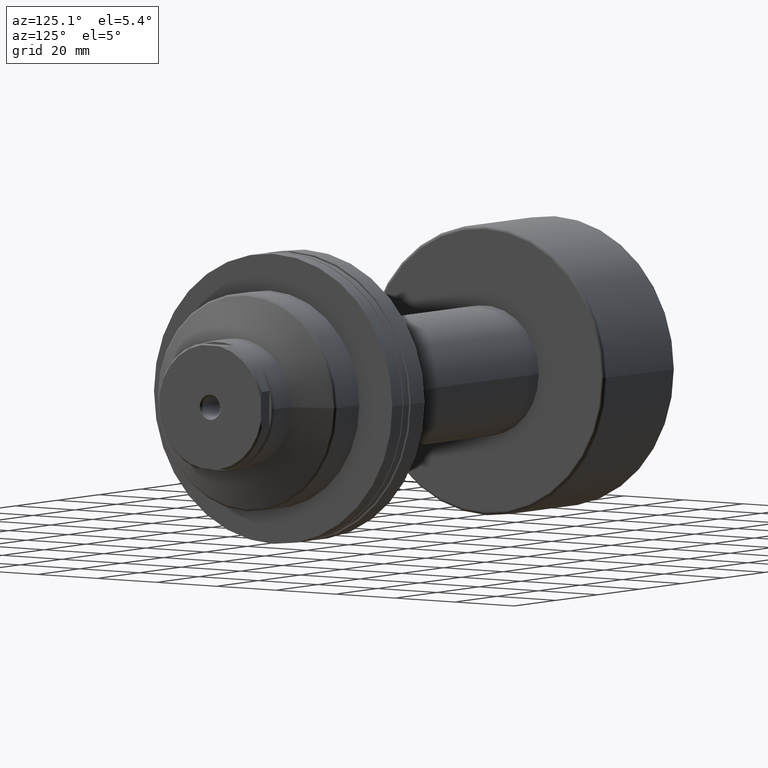
[diagram: clean part render]
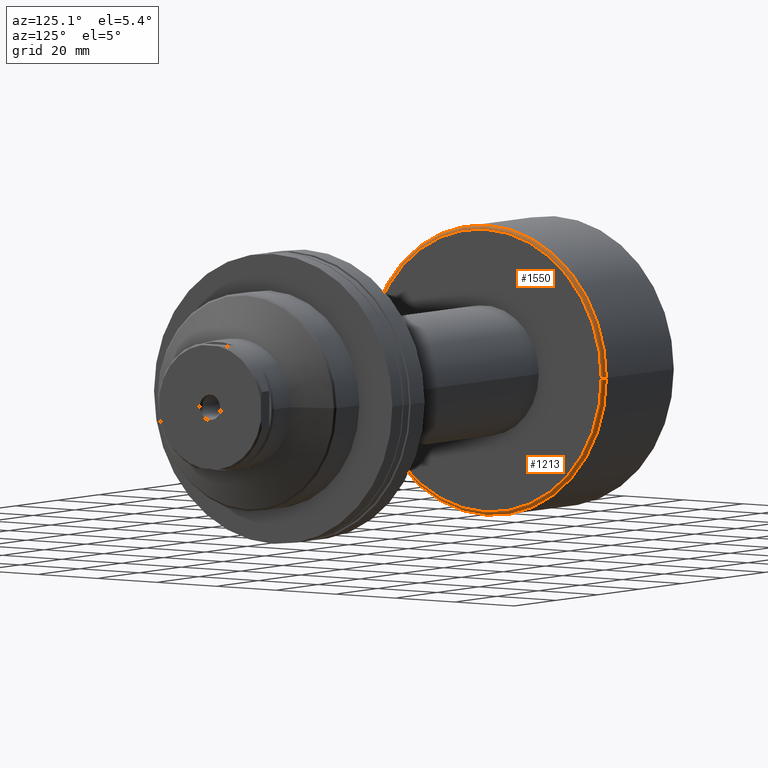
[diagram: same view with one multi-face feature highlighted, each face labeled with its STEP entity id]
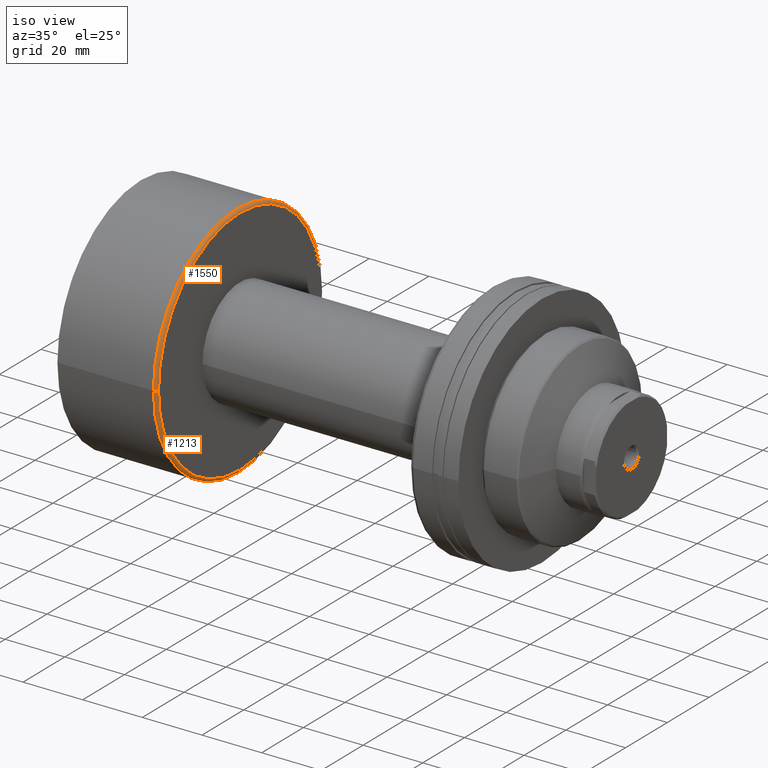
[diagram: same view with one multi-face feature highlighted, each face labeled with its STEP entity id]
A machine part, auxiliary view. The highlighted faces form ONE feature: a constant-radius fillet chain: 2 tangent blend faces with common blend radius 1 mm. The faces share edges in the B-rep.
A second angle (iso view) of the same feature is appended — it is thin or edge-on in the first view.
Their STEP definitions:
[1] entity #1213 (Torus):
#15 = EDGE_CURVE ( 'NONE', #43, #1897, #931, .T. ) ;
#43 = VERTEX_POINT ( 'NONE', #1557 ) ;
#99 = DIRECTION ( 'NONE',  ( -1.000000000000000000, -1.069542322069065801E-17, -0.000000000000000000 ) ) ;
#116 = CARTESIAN_POINT ( 'NONE',  ( 33.70000000000001705, 3.604357625372753238E-16, 0.000000000000000000 ) ) ;
#131 = CARTESIAN_POINT ( 'NONE',  ( 33.70000000000001705, 0.000000000000000000, 0.000000000000000000 ) ) ;
#214 = EDGE_CURVE ( 'NONE', #2219, #43, #1668, .T. ) ;
#294 = ORIENTED_EDGE ( 'NONE', *, *, #1683, .F. ) ;
#303 = CARTESIAN_POINT ( 'NONE',  ( 34.70000000000001705, 38.99999999999999289, 4.837354856632044663E-15 ) ) ;
#354 = CARTESIAN_POINT ( 'NONE',  ( 33.70000000000001705, -39.99999999999999289, 0.000000000000000000 ) ) ;
#443 = AXIS2_PLACEMENT_3D ( 'NONE', #1469, #2177, #2187 ) ;
#479 = ORIENTED_EDGE ( 'NONE', *, *, #1765, .F. ) ;
#577 = AXIS2_PLACEMENT_3D ( 'NONE', #131, #708, #2241 ) ;
#603 = AXIS2_PLACEMENT_3D ( 'NONE', #666, #1351, #2209 ) ;
#666 = CARTESIAN_POINT ( 'NONE',  ( 33.70000000000001705, -38.99999999999999289, 0.000000000000000000 ) ) ;
#708 = DIRECTION ( 'NONE',  ( -1.000000000000000000, -1.069542322069065801E-17, -0.000000000000000000 ) ) ;
#931 = CIRCLE ( 'NONE', #603, 1.000000000000000888 ) ;
#1037 = DIRECTION ( 'NONE',  ( 1.309811581274509052E-33, -1.224646799147353207E-16, 1.000000000000000000 ) ) ;
#1051 = CARTESIAN_POINT ( 'NONE',  ( 33.70000000000001705, 39.99999999999999289, 4.898587196589412237E-15 ) ) ;
#1199 = CARTESIAN_POINT ( 'NONE',  ( 33.70000000000001705, 38.99999999999999289, 4.776122516674677089E-15 ) ) ;
#1203 = FACE_OUTER_BOUND ( 'NONE', #1865, .T. ) ;
#1213 = ADVANCED_FACE ( 'NONE', ( #1203 ), #1821, .T. ) ;
#1233 = ORIENTED_EDGE ( 'NONE', *, *, #15, .T. ) ;
#1341 = DIRECTION ( 'NONE',  ( 0.000000000000000000, -1.000000000000000000, 0.000000000000000000 ) ) ;
#1351 = DIRECTION ( 'NONE',  ( 0.000000000000000000, 0.000000000000000000, -1.000000000000000000 ) ) ;
#1421 = ORIENTED_EDGE ( 'NONE', *, *, #214, .T. ) ;
#1469 = CARTESIAN_POINT ( 'NONE',  ( 34.70000000000001705, 3.711311857579660173E-16, 0.000000000000000000 ) ) ;
#1557 = CARTESIAN_POINT ( 'NONE',  ( 34.70000000000001705, -38.99999999999999289, 0.000000000000000000 ) ) ;
#1668 = CIRCLE ( 'NONE', #443, 38.99999999999999289 ) ;
#1678 = AXIS2_PLACEMENT_3D ( 'NONE', #1199, #1037, #1700 ) ;
#1683 = EDGE_CURVE ( 'NONE', #2219, #1905, #2091, .T. ) ;
#1700 = DIRECTION ( 'NONE',  ( 0.000000000000000000, -1.000000000000000000, -1.224646799147357151E-16 ) ) ;
#1765 = EDGE_CURVE ( 'NONE', #1905, #1897, #2233, .T. ) ;
#1821 = TOROIDAL_SURFACE ( 'NONE', #577, 38.99999999999999289, 1.000000000000000888 ) ;
#1824 = AXIS2_PLACEMENT_3D ( 'NONE', #116, #99, #1341 ) ;
#1865 = EDGE_LOOP ( 'NONE', ( #294, #1421, #1233, #479 ) ) ;
#1897 = VERTEX_POINT ( 'NONE', #354 ) ;
#1905 = VERTEX_POINT ( 'NONE', #1051 ) ;
#2091 = CIRCLE ( 'NONE', #1678, 1.000000000000000888 ) ;
#2177 = DIRECTION ( 'NONE',  ( -1.000000000000000000, -1.069542322069065801E-17, -0.000000000000000000 ) ) ;
#2187 = DIRECTION ( 'NONE',  ( 0.000000000000000000, -1.000000000000000000, 0.000000000000000000 ) ) ;
#2209 = DIRECTION ( 'NONE',  ( -1.000000000000000000, 0.000000000000000000, 0.000000000000000000 ) ) ;
#2219 = VERTEX_POINT ( 'NONE', #303 ) ;
#2233 = CIRCLE ( 'NONE', #1824, 39.99999999999999289 ) ;
#2241 = DIRECTION ( 'NONE',  ( 1.069542322069065801E-17, -1.000000000000000000, 0.000000000000000000 ) ) ;
[2] entity #1550 (Torus):
#15 = EDGE_CURVE ( 'NONE', #43, #1897, #931, .T. ) ;
#43 = VERTEX_POINT ( 'NONE', #1557 ) ;
#203 = DIRECTION ( 'NONE',  ( 0.000000000000000000, -1.000000000000000000, 0.000000000000000000 ) ) ;
#254 = FACE_OUTER_BOUND ( 'NONE', #682, .T. ) ;
#259 = CIRCLE ( 'NONE', #1401, 39.99999999999999289 ) ;
#303 = CARTESIAN_POINT ( 'NONE',  ( 34.70000000000001705, 38.99999999999999289, 4.837354856632044663E-15 ) ) ;
#354 = CARTESIAN_POINT ( 'NONE',  ( 33.70000000000001705, -39.99999999999999289, 0.000000000000000000 ) ) ;
#360 = EDGE_CURVE ( 'NONE', #1897, #1905, #259, .T. ) ;
#364 = DIRECTION ( 'NONE',  ( -1.000000000000000000, -1.069542322069065801E-17, -0.000000000000000000 ) ) ;
#411 = CIRCLE ( 'NONE', #1857, 38.99999999999999289 ) ;
#603 = AXIS2_PLACEMENT_3D ( 'NONE', #666, #1351, #2209 ) ;
#666 = CARTESIAN_POINT ( 'NONE',  ( 33.70000000000001705, -38.99999999999999289, 0.000000000000000000 ) ) ;
#682 = EDGE_LOOP ( 'NONE', ( #1296, #1226, #806, #2111 ) ) ;
#806 = ORIENTED_EDGE ( 'NONE', *, *, #360, .F. ) ;
#931 = CIRCLE ( 'NONE', #603, 1.000000000000000888 ) ;
#1037 = DIRECTION ( 'NONE',  ( 1.309811581274509052E-33, -1.224646799147353207E-16, 1.000000000000000000 ) ) ;
#1051 = CARTESIAN_POINT ( 'NONE',  ( 33.70000000000001705, 39.99999999999999289, 4.898587196589412237E-15 ) ) ;
#1199 = CARTESIAN_POINT ( 'NONE',  ( 33.70000000000001705, 38.99999999999999289, 4.776122516674677089E-15 ) ) ;
#1226 = ORIENTED_EDGE ( 'NONE', *, *, #1683, .T. ) ;
#1240 = DIRECTION ( 'NONE',  ( -1.000000000000000000, -1.069542322069065801E-17, -0.000000000000000000 ) ) ;
#1296 = ORIENTED_EDGE ( 'NONE', *, *, #1476, .T. ) ;
#1351 = DIRECTION ( 'NONE',  ( 0.000000000000000000, 0.000000000000000000, -1.000000000000000000 ) ) ;
#1401 = AXIS2_PLACEMENT_3D ( 'NONE', #1778, #364, #2288 ) ;
#1450 = AXIS2_PLACEMENT_3D ( 'NONE', #1484, #1688, #2030 ) ;
#1476 = EDGE_CURVE ( 'NONE', #43, #2219, #411, .T. ) ;
#1484 = CARTESIAN_POINT ( 'NONE',  ( 33.70000000000001705, 0.000000000000000000, 0.000000000000000000 ) ) ;
#1550 = ADVANCED_FACE ( 'NONE', ( #254 ), #1715, .T. ) ;
#1557 = CARTESIAN_POINT ( 'NONE',  ( 34.70000000000001705, -38.99999999999999289, 0.000000000000000000 ) ) ;
#1678 = AXIS2_PLACEMENT_3D ( 'NONE', #1199, #1037, #1700 ) ;
#1683 = EDGE_CURVE ( 'NONE', #2219, #1905, #2091, .T. ) ;
#1688 = DIRECTION ( 'NONE',  ( -1.000000000000000000, -1.069542322069065801E-17, -0.000000000000000000 ) ) ;
#1700 = DIRECTION ( 'NONE',  ( 0.000000000000000000, -1.000000000000000000, -1.224646799147357151E-16 ) ) ;
#1715 = TOROIDAL_SURFACE ( 'NONE', #1450, 38.99999999999999289, 1.000000000000000888 ) ;
#1778 = CARTESIAN_POINT ( 'NONE',  ( 33.70000000000001705, 3.604357625372753238E-16, 0.000000000000000000 ) ) ;
#1804 = CARTESIAN_POINT ( 'NONE',  ( 34.70000000000001705, 3.711311857579660173E-16, 0.000000000000000000 ) ) ;
#1857 = AXIS2_PLACEMENT_3D ( 'NONE', #1804, #1240, #203 ) ;
#1897 = VERTEX_POINT ( 'NONE', #354 ) ;
#1905 = VERTEX_POINT ( 'NONE', #1051 ) ;
#2030 = DIRECTION ( 'NONE',  ( 1.069542322069065801E-17, -1.000000000000000000, 0.000000000000000000 ) ) ;
#2091 = CIRCLE ( 'NONE', #1678, 1.000000000000000888 ) ;
#2111 = ORIENTED_EDGE ( 'NONE', *, *, #15, .F. ) ;
#2209 = DIRECTION ( 'NONE',  ( -1.000000000000000000, 0.000000000000000000, 0.000000000000000000 ) ) ;
#2219 = VERTEX_POINT ( 'NONE', #303 ) ;
#2288 = DIRECTION ( 'NONE',  ( 0.000000000000000000, -1.000000000000000000, 0.000000000000000000 ) ) ;